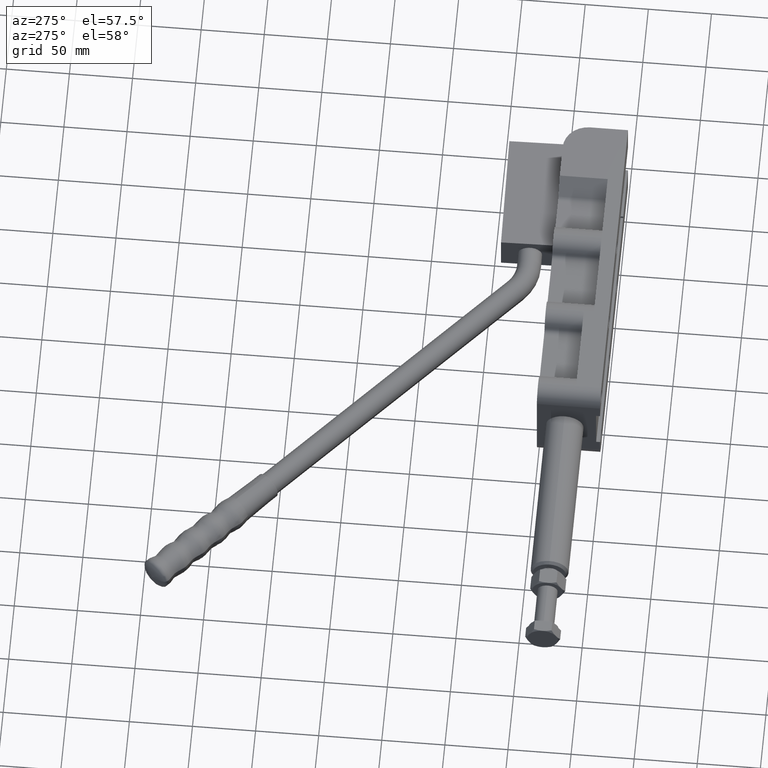
[diagram: clean part render]
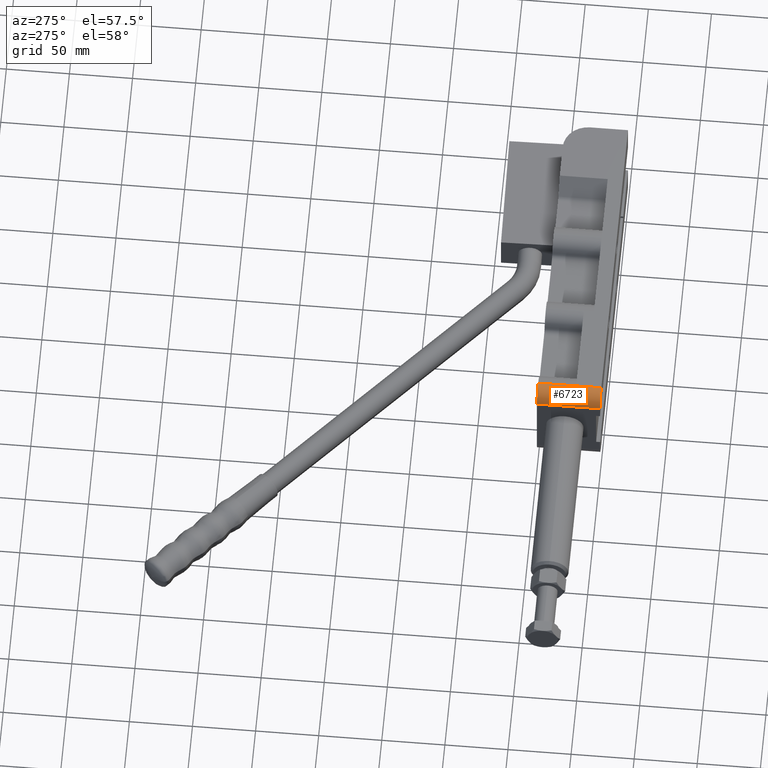
[diagram: same view with one face highlighted and labeled with its STEP entity id]
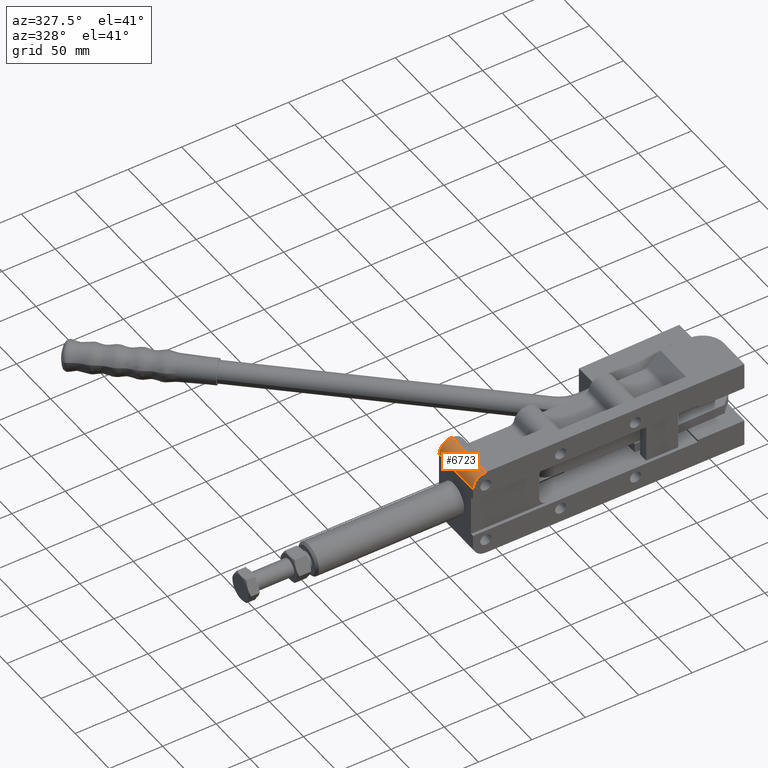
[diagram: same view with one face highlighted and labeled with its STEP entity id]
A machine part, auxiliary view. The second image highlights one B-rep face of the part: STEP entity #6723.
A second angle (auxiliary view) of the same face is appended — the face is thin or edge-on in the first view.
In plain terms, the highlighted cylindrical surface (edge-blend (fillet) strip) has radius 12 mm, axis along (0, 1, 0).
Its self-contained STEP definition (entity closure, byte-faithful):
#53 = CARTESIAN_POINT ( 'NONE',  ( -114.9999999999999900, 21.00000000000000400, 42.00000000000002800 ) ) ;
#302 = CARTESIAN_POINT ( 'NONE',  ( -127.0000000000000000, -102.9610915803116900, 29.99999999999997200 ) ) ;
#323 = CARTESIAN_POINT ( 'NONE',  ( -114.9999999999999900, 51.00000000000000000, 29.99999999999999600 ) ) ;
#357 = LINE ( 'NONE', #5782, #1566 ) ;
#407 = VERTEX_POINT ( 'NONE', #5349 ) ;
#433 = ORIENTED_EDGE ( 'NONE', *, *, #6222, .F. ) ;
#481 = CARTESIAN_POINT ( 'NONE',  ( -127.0000000000000000, 0.9999999999999940000, 29.99999999999997200 ) ) ;
#709 = EDGE_CURVE ( 'NONE', #5808, #407, #5834, .T. ) ;
#855 = DIRECTION ( 'NONE',  ( 0.0000000000000000000, 0.0000000000000000000, 1.000000000000000000 ) ) ;
#991 = CYLINDRICAL_SURFACE ( 'NONE', #1035, 12.00000000000001400 ) ;
#1035 = AXIS2_PLACEMENT_3D ( 'NONE', #2372, #1806, #6576 ) ;
#1220 = ORIENTED_EDGE ( 'NONE', *, *, #6462, .T. ) ;
#1378 = VERTEX_POINT ( 'NONE', #5657 ) ;
#1566 = VECTOR ( 'NONE', #2093, 1000.000000000000000 ) ;
#1615 = EDGE_CURVE ( 'NONE', #4286, #5808, #6061, .T. ) ;
#1712 = VERTEX_POINT ( 'NONE', #481 ) ;
#1806 = DIRECTION ( 'NONE',  ( -0.0000000000000000000, 1.000000000000000000, -0.0000000000000000000 ) ) ;
#1840 = LINE ( 'NONE', #302, #4472 ) ;
#2093 = DIRECTION ( 'NONE',  ( -0.0000000000000000000, 1.000000000000000000, -0.0000000000000000000 ) ) ;
#2206 = ORIENTED_EDGE ( 'NONE', *, *, #2730, .T. ) ;
#2372 = CARTESIAN_POINT ( 'NONE',  ( -114.9999999999999900, -102.9610915803116900, 29.99999999999999600 ) ) ;
#2466 = CARTESIAN_POINT ( 'NONE',  ( -114.9999999999999900, 51.00000000000000000, 42.00000000000000700 ) ) ;
#2730 = EDGE_CURVE ( 'NONE', #1712, #1378, #6041, .T. ) ;
#2974 = EDGE_LOOP ( 'NONE', ( #1220, #3196, #3654, #433, #2206 ) ) ;
#3196 = ORIENTED_EDGE ( 'NONE', *, *, #1615, .T. ) ;
#3522 = DIRECTION ( 'NONE',  ( 0.0000000000000000000, 0.0000000000000000000, 1.000000000000000000 ) ) ;
#3654 = ORIENTED_EDGE ( 'NONE', *, *, #709, .T. ) ;
#3797 = FACE_OUTER_BOUND ( 'NONE', #2974, .T. ) ;
#3999 = DIRECTION ( 'NONE',  ( -0.0000000000000000000, -1.000000000000000000, -0.0000000000000000000 ) ) ;
#4286 = VERTEX_POINT ( 'NONE', #53 ) ;
#4472 = VECTOR ( 'NONE', #6608, 1000.000000000000000 ) ;
#4823 = VECTOR ( 'NONE', #6443, 1000.000000000000000 ) ;
#5349 = CARTESIAN_POINT ( 'NONE',  ( -127.0000000000000000, 51.00000000000000000, 29.99999999999997200 ) ) ;
#5352 = DIRECTION ( 'NONE',  ( -0.0000000000000000000, 1.000000000000000000, 0.0000000000000000000 ) ) ;
#5619 = AXIS2_PLACEMENT_3D ( 'NONE', #323, #3999, #855 ) ;
#5657 = CARTESIAN_POINT ( 'NONE',  ( -114.9999999999999900, 1.000000000000000900, 42.00000000000000700 ) ) ;
#5782 = CARTESIAN_POINT ( 'NONE',  ( -114.9999999999999900, 0.0000000000000000000, 42.00000000000002800 ) ) ;
#5808 = VERTEX_POINT ( 'NONE', #2466 ) ;
#5834 = CIRCLE ( 'NONE', #5619, 12.00000000000001400 ) ;
#5942 = AXIS2_PLACEMENT_3D ( 'NONE', #6252, #5352, #3522 ) ;
#5951 = CARTESIAN_POINT ( 'NONE',  ( -114.9999999999999900, -102.9610915803116900, 42.00000000000000700 ) ) ;
#6041 = CIRCLE ( 'NONE', #5942, 12.00000000000001400 ) ;
#6061 = LINE ( 'NONE', #5951, #4823 ) ;
#6222 = EDGE_CURVE ( 'NONE', #1712, #407, #1840, .T. ) ;
#6252 = CARTESIAN_POINT ( 'NONE',  ( -114.9999999999999900, 1.000000000000000900, 29.99999999999999600 ) ) ;
#6443 = DIRECTION ( 'NONE',  ( -0.0000000000000000000, 1.000000000000000000, -0.0000000000000000000 ) ) ;
#6462 = EDGE_CURVE ( 'NONE', #1378, #4286, #357, .T. ) ;
#6576 = DIRECTION ( 'NONE',  ( 0.0000000000000000000, 0.0000000000000000000, 1.000000000000000000 ) ) ;
#6608 = DIRECTION ( 'NONE',  ( -0.0000000000000000000, 1.000000000000000000, -0.0000000000000000000 ) ) ;
#6723 = ADVANCED_FACE ( 'NONE', ( #3797 ), #991, .T. ) ;